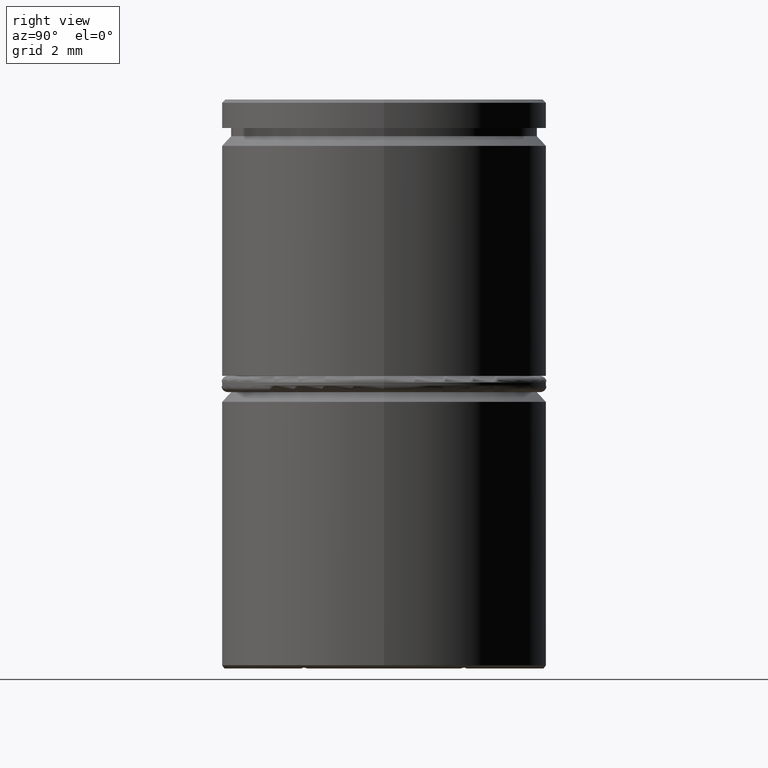
[diagram: clean part render]
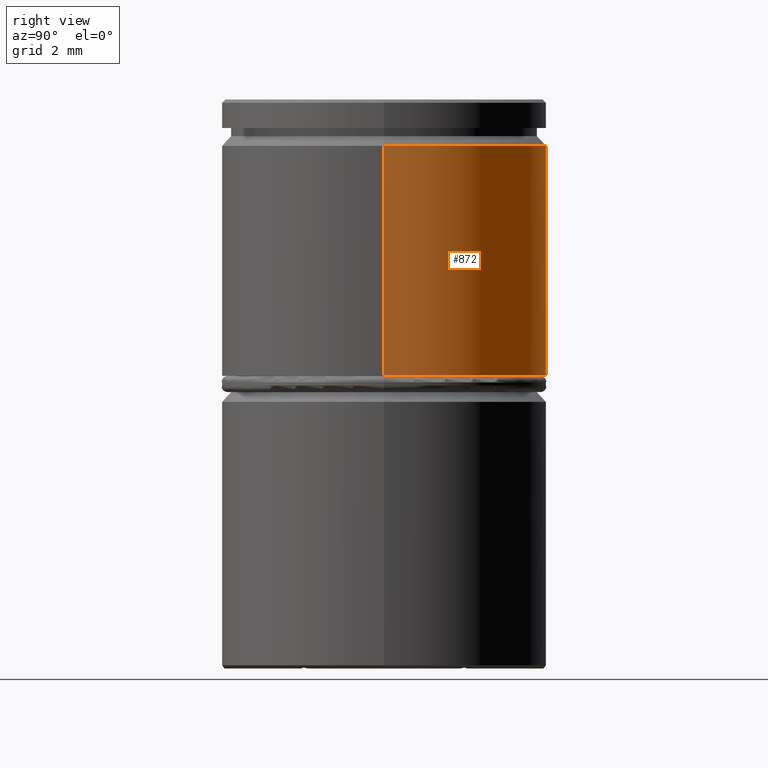
[diagram: same view with one face highlighted and labeled with its STEP entity id]
A machine part, right view. The second image highlights one B-rep face of the part: STEP entity #872.
In plain terms, the highlighted cylindrical surface (partial cylindrical patch) has radius 5 mm, axis along (-0, -0, 1).
Its self-contained STEP definition (entity closure, byte-faithful):
#23 = EDGE_LOOP ( 'NONE', ( #1218, #860, #968, #856 ) ) ;
#34 = EDGE_CURVE ( 'NONE', #1103, #629, #1334, .T. ) ;
#144 = DIRECTION ( 'NONE',  ( 1.000000000000000000, 0.000000000000000000, 0.000000000000000000 ) ) ;
#265 = CIRCLE ( 'NONE', #924, 5.000000000000000000 ) ;
#286 = FACE_OUTER_BOUND ( 'NONE', #23, .T. ) ;
#309 = AXIS2_PLACEMENT_3D ( 'NONE', #1146, #1035, #1257 ) ;
#475 = DIRECTION ( 'NONE',  ( -0.000000000000000000, -0.000000000000000000, 1.000000000000000000 ) ) ;
#480 = LINE ( 'NONE', #801, #903 ) ;
#629 = VERTEX_POINT ( 'NONE', #1077 ) ;
#728 = EDGE_CURVE ( 'NONE', #629, #1005, #754, .T. ) ;
#731 = CARTESIAN_POINT ( 'NONE',  ( 0.000000000000000000, 0.000000000000000000, -8.500000000000000000 ) ) ;
#743 = CARTESIAN_POINT ( 'NONE',  ( 0.000000000000000000, 0.000000000000000000, -1.424999999999994049 ) ) ;
#750 = EDGE_CURVE ( 'NONE', #1103, #1252, #480, .T. ) ;
#754 = LINE ( 'NONE', #1344, #1267 ) ;
#758 = DIRECTION ( 'NONE',  ( 1.000000000000000000, 0.000000000000000000, 0.000000000000000000 ) ) ;
#801 = CARTESIAN_POINT ( 'NONE',  ( 5.000000000000000000, 0.000000000000000000, 0.000000000000000000 ) ) ;
#856 = ORIENTED_EDGE ( 'NONE', *, *, #750, .F. ) ;
#860 = ORIENTED_EDGE ( 'NONE', *, *, #728, .T. ) ;
#872 = ADVANCED_FACE ( 'NONE', ( #286 ), #1253, .T. ) ;
#899 = AXIS2_PLACEMENT_3D ( 'NONE', #731, #1161, #144 ) ;
#903 = VECTOR ( 'NONE', #1234, 1000.000000000000000 ) ;
#924 = AXIS2_PLACEMENT_3D ( 'NONE', #743, #1299, #758 ) ;
#968 = ORIENTED_EDGE ( 'NONE', *, *, #1101, .T. ) ;
#1005 = VERTEX_POINT ( 'NONE', #1353 ) ;
#1035 = DIRECTION ( 'NONE',  ( -0.000000000000000000, -0.000000000000000000, 1.000000000000000000 ) ) ;
#1077 = CARTESIAN_POINT ( 'NONE',  ( -5.000000000000000000, 6.123233995736766282E-16, -8.500000000000000000 ) ) ;
#1101 = EDGE_CURVE ( 'NONE', #1005, #1252, #265, .T. ) ;
#1103 = VERTEX_POINT ( 'NONE', #1193 ) ;
#1146 = CARTESIAN_POINT ( 'NONE',  ( 0.000000000000000000, 0.000000000000000000, 0.000000000000000000 ) ) ;
#1161 = DIRECTION ( 'NONE',  ( -0.000000000000000000, -0.000000000000000000, 1.000000000000000000 ) ) ;
#1191 = CARTESIAN_POINT ( 'NONE',  ( 5.000000000000000000, 0.000000000000000000, -1.424999999999994049 ) ) ;
#1193 = CARTESIAN_POINT ( 'NONE',  ( 5.000000000000000000, 0.000000000000000000, -8.500000000000000000 ) ) ;
#1218 = ORIENTED_EDGE ( 'NONE', *, *, #34, .T. ) ;
#1234 = DIRECTION ( 'NONE',  ( -0.000000000000000000, -0.000000000000000000, 1.000000000000000000 ) ) ;
#1252 = VERTEX_POINT ( 'NONE', #1191 ) ;
#1253 = CYLINDRICAL_SURFACE ( 'NONE', #309, 5.000000000000000000 ) ;
#1257 = DIRECTION ( 'NONE',  ( 1.000000000000000000, 0.000000000000000000, 0.000000000000000000 ) ) ;
#1267 = VECTOR ( 'NONE', #475, 1000.000000000000000 ) ;
#1299 = DIRECTION ( 'NONE',  ( 0.000000000000000000, 0.000000000000000000, -1.000000000000000000 ) ) ;
#1334 = CIRCLE ( 'NONE', #899, 5.000000000000000000 ) ;
#1344 = CARTESIAN_POINT ( 'NONE',  ( -5.000000000000000000, 6.123233995736766282E-16, 0.000000000000000000 ) ) ;
#1353 = CARTESIAN_POINT ( 'NONE',  ( -5.000000000000000000, 6.123233995736766282E-16, -1.424999999999994049 ) ) ;